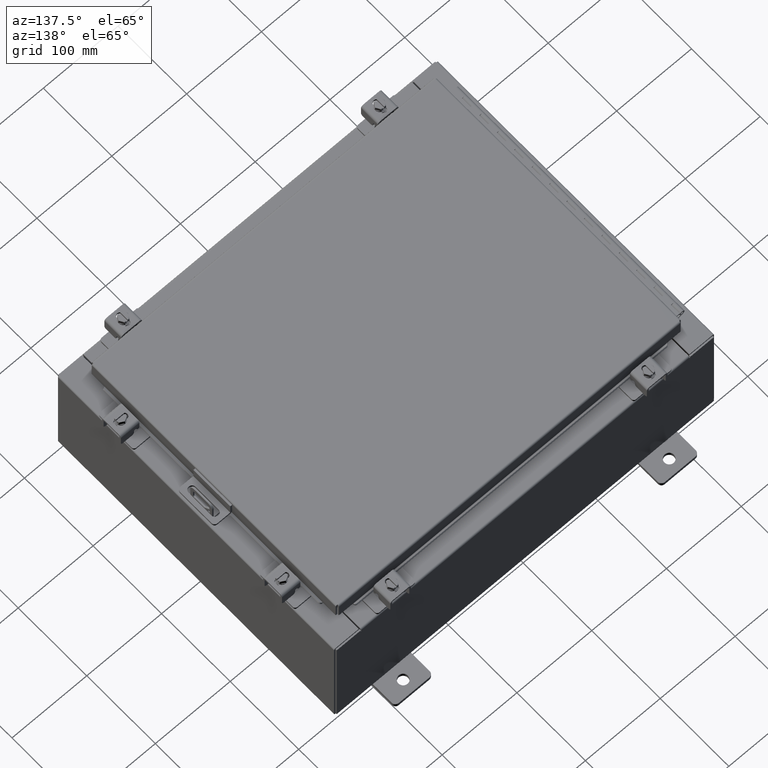
[diagram: clean part render]
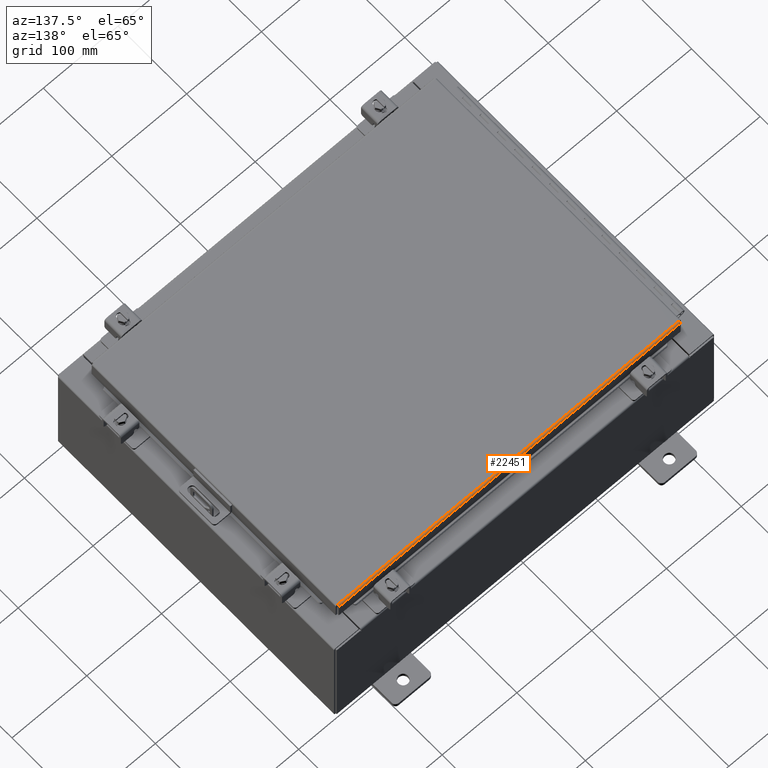
[diagram: same view with one face highlighted and labeled with its STEP entity id]
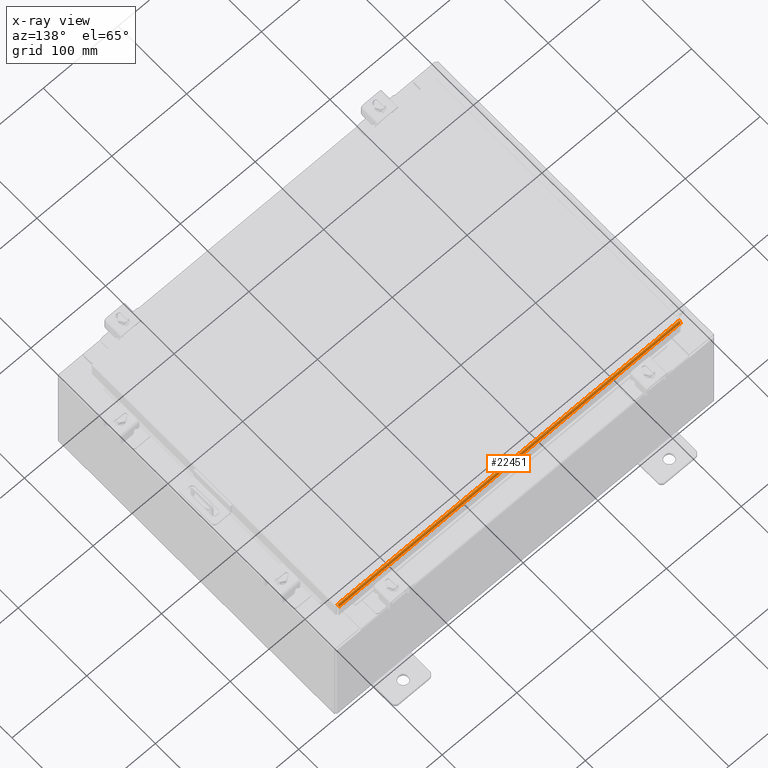
[diagram: x-ray of the same camera — body ghosted, the highlighted face saturated]
A machine part, auxiliary view. The second image highlights one B-rep face of the part: STEP entity #22451.
The next image is the same camera in x-ray: the body ghosted, the highlighted face saturated — about 0% of this face is hidden behind the body in this view.
In plain terms, the highlighted cylindrical surface (edge-blend (fillet) strip) has radius 2.2276 mm, axis along (1, 0, 0).
Its self-contained STEP definition (entity closure, byte-faithful):
#168 = CYLINDRICAL_SURFACE ( 'NONE', #475, 0.08770000000000026400 ) ;
#475 = AXIS2_PLACEMENT_3D ( 'NONE', #1133, #3159, #13153 ) ;
#1133 = CARTESIAN_POINT ( 'NONE',  ( 8.990300000000001300, 7.006300000000001300, -0.08770000000000030500 ) ) ;
#1497 = DIRECTION ( 'NONE',  ( -1.000000000000000000, -0.0000000000000000000, -0.0000000000000000000 ) ) ;
#1596 = CARTESIAN_POINT ( 'NONE',  ( 8.990300000000001300, 7.006300000000001300, -2.048885995248197400E-016 ) ) ;
#1700 = CARTESIAN_POINT ( 'NONE',  ( 8.990300000000001300, 7.006300000000001300, -2.048885995248197400E-016 ) ) ;
#1849 = VERTEX_POINT ( 'NONE', #23969 ) ;
#2486 = VECTOR ( 'NONE', #1497, 39.37007874015748100 ) ;
#3159 = DIRECTION ( 'NONE',  ( 1.000000000000000000, 0.0000000000000000000, 0.0000000000000000000 ) ) ;
#3587 = CARTESIAN_POINT ( 'NONE',  ( 8.989538576250840400, 7.082931066258669100, -0.04353261542147222900 ) ) ;
#5228 = ORIENTED_EDGE ( 'NONE', *, *, #25476, .F. ) ;
#5506 = VECTOR ( 'NONE', #8315, 39.37007874015748100 ) ;
#5604 = CARTESIAN_POINT ( 'NONE',  ( -8.989919288125420800, 7.050467384578526600, -0.01106893374133176100 ) ) ;
#5611 = CARTESIAN_POINT ( 'NONE',  ( 8.989824110156776600, 7.060195747341802000, -0.01756921792167976500 ) ) ;
#6323 = CARTESIAN_POINT ( 'NONE',  ( -9.077999999999999400, 7.094000000000001200, -0.08770000000000007000 ) ) ;
#6501 = CARTESIAN_POINT ( 'NONE',  ( -8.990299999999999500, 7.006300000000001300, -1.843997395723377600E-015 ) ) ;
#6536 = ORIENTED_EDGE ( 'NONE', *, *, #24483, .T. ) ;
#7131 = VERTEX_POINT ( 'NONE', #9188 ) ;
#7601 = CARTESIAN_POINT ( 'NONE',  ( -8.989633754219490000, 7.076430782078319700, -0.03380425265820009900 ) ) ;
#7610 = CARTESIAN_POINT ( 'NONE',  ( 8.990109644062711100, 7.029255289458310700, -0.002282596256188923000 ) ) ;
#8315 = DIRECTION ( 'NONE',  ( -1.000000000000000000, -3.605222026166234800E-031, -9.826997386333231700E-046 ) ) ;
#9173 = VERTEX_POINT ( 'NONE', #6501 ) ;
#9188 = CARTESIAN_POINT ( 'NONE',  ( -8.989157864376267100, 7.094000000000001200, -0.08770000000000007000 ) ) ;
#9628 = CARTESIAN_POINT ( 'NONE',  ( -8.989348220313555500, 7.091717403743813500, -0.06474471054169121700 ) ) ;
#9636 = CARTESIAN_POINT ( 'NONE',  ( 8.990300000000001300, 7.006300000000001300, -2.048885995248197400E-016 ) ) ;
#9891 = B_SPLINE_CURVE_WITH_KNOTS ( 'NONE', 3,
 ( #21597, #23647, #15609, #3587, #17638, #5611, #19665, #7610, #21694, #9636 ),
 .UNSPECIFIED., .F., .F.,
 ( 4, 2, 2, 2, 4 ),
 ( 0.0000000000000000000, 0.2500000000000000000, 0.5000000000000000000, 0.7500000000000000000, 1.000000000000000000 ),
 .UNSPECIFIED. ) ;
#11669 = CARTESIAN_POINT ( 'NONE',  ( -8.989157864376267100, 7.094000000000001200, -0.08770000000000007000 ) ) ;
#11730 = ORIENTED_EDGE ( 'NONE', *, *, #12368, .F. ) ;
#12368 = EDGE_CURVE ( 'NONE', #20121, #9173, #18519, .T. ) ;
#13153 = DIRECTION ( 'NONE',  ( 0.0000000000000000000, 1.000000000000000000, 2.725618009642215600E-015 ) ) ;
#15549 = LINE ( 'NONE', #6323, #5506 ) ;
#15609 = CARTESIAN_POINT ( 'NONE',  ( 8.989348220313557300, 7.091717403743812700, -0.06474471054169121700 ) ) ;
#16226 = FACE_OUTER_BOUND ( 'NONE', #21896, .T. ) ;
#16795 = EDGE_CURVE ( 'NONE', #9173, #7131, #17916, .T. ) ;
#17631 = CARTESIAN_POINT ( 'NONE',  ( -8.990109644062711100, 7.029255289458311600, -0.002282596256188923400 ) ) ;
#17638 = CARTESIAN_POINT ( 'NONE',  ( 8.989633754219488200, 7.076430782078321400, -0.03380425265820009200 ) ) ;
#17916 = B_SPLINE_CURVE_WITH_KNOTS ( 'NONE', 3,
 ( #25683, #23638, #17631, #5604, #19653, #7601, #21684, #9628, #23725, #11669 ),
 .UNSPECIFIED., .F., .F.,
 ( 4, 2, 2, 2, 4 ),
 ( 0.0000000000000000000, 0.2500000000000000000, 0.5000000000000000000, 0.7500000000000000000, 1.000000000000000000 ),
 .UNSPECIFIED. ) ;
#18519 = LINE ( 'NONE', #1596, #2486 ) ;
#19653 = CARTESIAN_POINT ( 'NONE',  ( -8.989824110156776600, 7.060195747341802900, -0.01756921792167976500 ) ) ;
#19665 = CARTESIAN_POINT ( 'NONE',  ( 8.989919288125422600, 7.050467384578529300, -0.01106893374133176100 ) ) ;
#20121 = VERTEX_POINT ( 'NONE', #1700 ) ;
#20705 = ORIENTED_EDGE ( 'NONE', *, *, #16795, .F. ) ;
#21597 = CARTESIAN_POINT ( 'NONE',  ( 8.989157864376267100, 7.094000000000001200, -0.08770000000000007000 ) ) ;
#21684 = CARTESIAN_POINT ( 'NONE',  ( -8.989538576250844000, 7.082931066258669100, -0.04353261542147223600 ) ) ;
#21694 = CARTESIAN_POINT ( 'NONE',  ( 8.990204822031357100, 7.017779903154994300, -2.038214714022946300E-016 ) ) ;
#21896 = EDGE_LOOP ( 'NONE', ( #11730, #5228, #6536, #20705 ) ) ;
#22451 = ADVANCED_FACE ( 'NONE', ( #16226 ), #168, .T. ) ;
#23638 = CARTESIAN_POINT ( 'NONE',  ( -8.990204822031353500, 7.017779903154994300, -2.037881236484656600E-016 ) ) ;
#23647 = CARTESIAN_POINT ( 'NONE',  ( 8.989253042344911300, 7.093999999999999400, -0.07622009684500735700 ) ) ;
#23725 = CARTESIAN_POINT ( 'NONE',  ( -8.989253042344911300, 7.094000000000001200, -0.07622009684500738500 ) ) ;
#23969 = CARTESIAN_POINT ( 'NONE',  ( 8.989157864376267100, 7.094000000000001200, -0.08770000000000007000 ) ) ;
#24483 = EDGE_CURVE ( 'NONE', #1849, #7131, #15549, .T. ) ;
#25476 = EDGE_CURVE ( 'NONE', #1849, #20121, #9891, .T. ) ;
#25683 = CARTESIAN_POINT ( 'NONE',  ( -8.990299999999999500, 7.006300000000001300, -1.843997395723377600E-015 ) ) ;